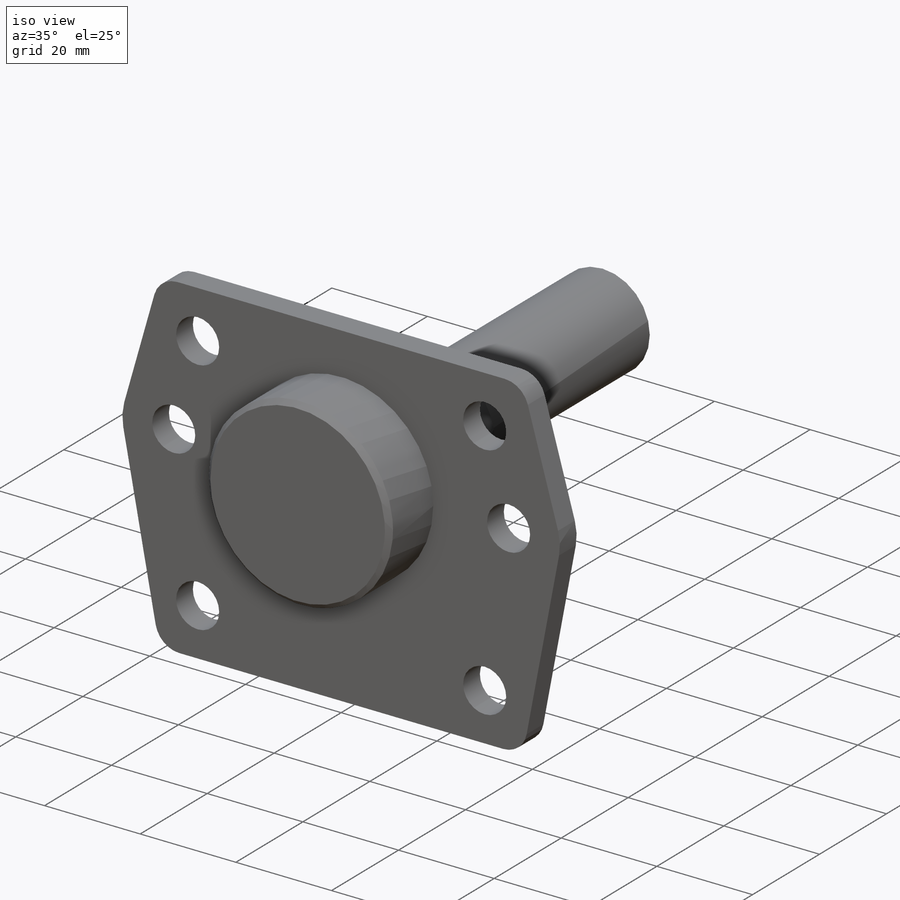
[diagram: iso view]
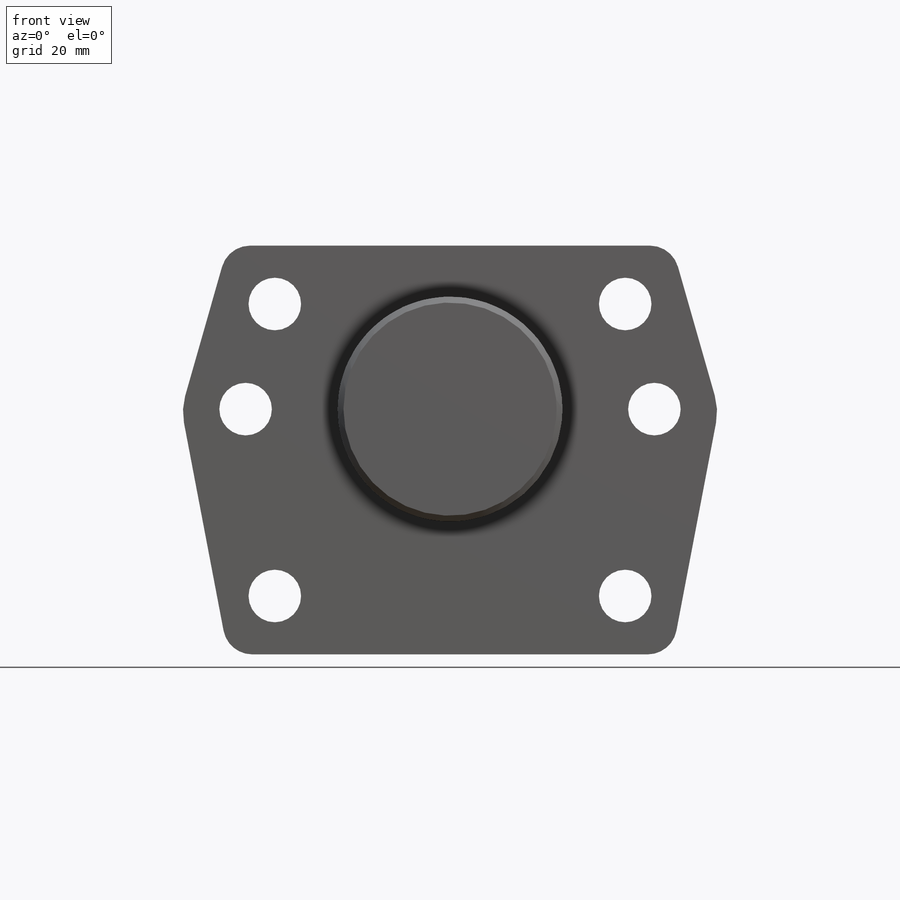
[diagram: front view]
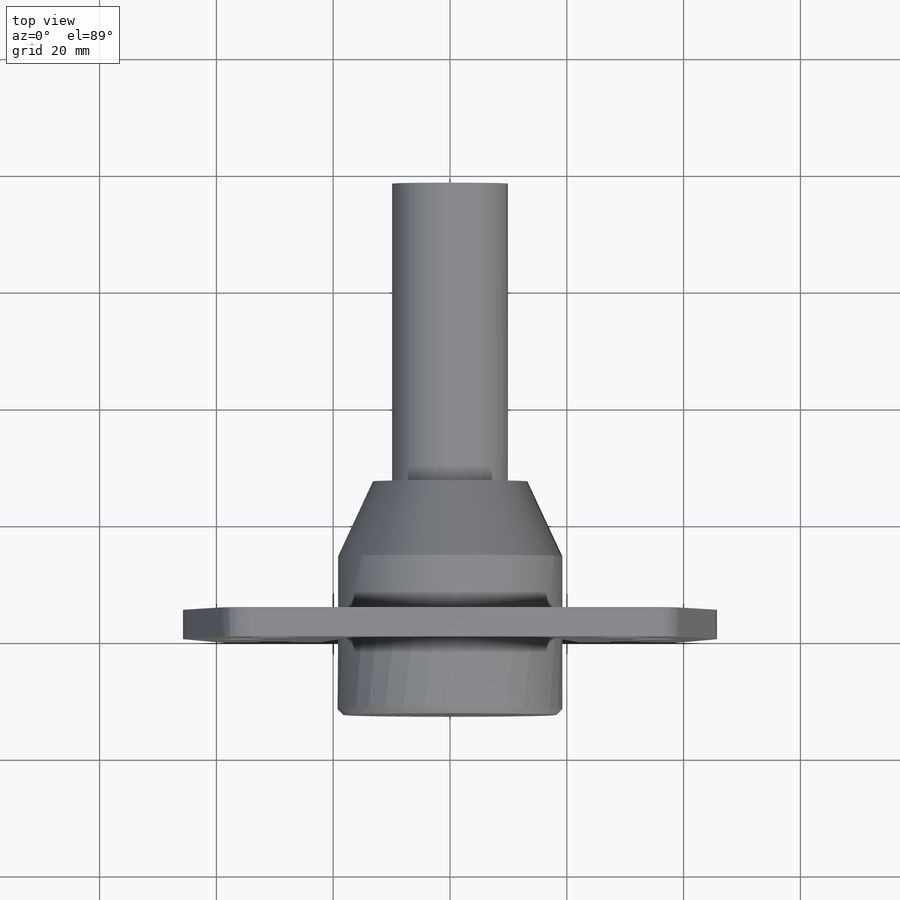
[diagram: top view]
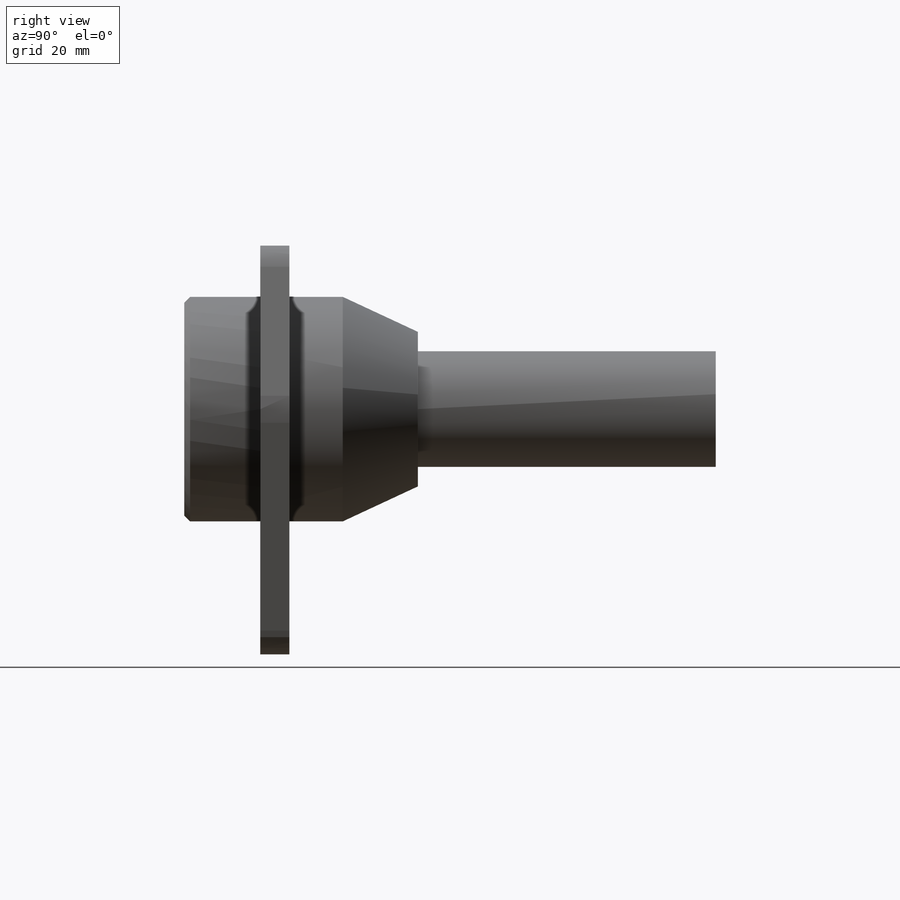
[diagram: right view]
SOLIDWORKS PART (.sldprt)
format: sldprt  version: not decoded by parser v0  size: 283,136 bytes
history: native  units: mm
features: sketch x5, plane x4, extrude x3, chamfer x2, material x1, helix x1 (+10 scaffold rows collapsed)
feature tree (26):
  scaffold x10  (default folders/planes/origin — collapsed)
  material  "Matériau <non spécifié>"
  plane  "Plan de face"
  plane  "Plan de dessus"
  plane  "Plan de droite"
  sketch  "Esquisse1"  dims[c1.D9=5.0mm c1.D10=5.0mm c1.D11=5.0mm c1.D12=5.0mm c1.D13=10.0mm c1.D14=10.0mm c1.D15=9.0mm c1.D16=9.0mm c1.D19=9.0mm c1.D22=9.0mm c1.D25=9.0mm c1.D26=9.0mm c1.D31=38.5mm c1.D32=19.8mm c1.D33=19.8mm c1.D1=46.0mm c1.D2=92.0mm c1.D3=28.0mm c1.D4=42.0mm c1.D5=38.0mm c1.D6=76.0mm c1.D7=38.0mm c1.D8=76.0mm c2.D9=~42.755117mm c2.D17=35.0mm c2.D18=35.0mm c2.D20=18.0mm c2.D21=30.0mm c2.D22=~0.866068mm c2.D23=18.0mm c2.D24=30.0mm c2.D27=30.0mm c2.D28=30.0mm c2.D29=32.0mm c2.D30=32.0mm]
  extrude  "Boss.-Extru.1"  Depth=13mm
  extrude  "Boss.-Extru.2"  [1 undecoded]
  sketch  "Esquisse1<6>"  dims[D1=5.0mm]
  chamfer  "Chanfrein1"  Distance=1mm Angle=45deg
  sketch  "Esquisse3D1"
  sketch  "Esquisse6"  dims[D1=19.8mm]
  extrude  "Boss.-Extru.4"  Depth=51mm
  chamfer  "Chanfrein2"  Distance=6mm Angle=65deg
  plane  "Plan1"
  sketch  "Esquisse10"  dims[D1=19.8mm]
  helix  "Hélice/Spirale2"  Pitch=27mm
decode coverage: 9 of 11 modeling features carry decoded parameters
note: ~ marks probable driven/reference dimensions
note: 1 parameter value undecoded
note: suppression state not decoded; provenance and decode notes live in map.json
